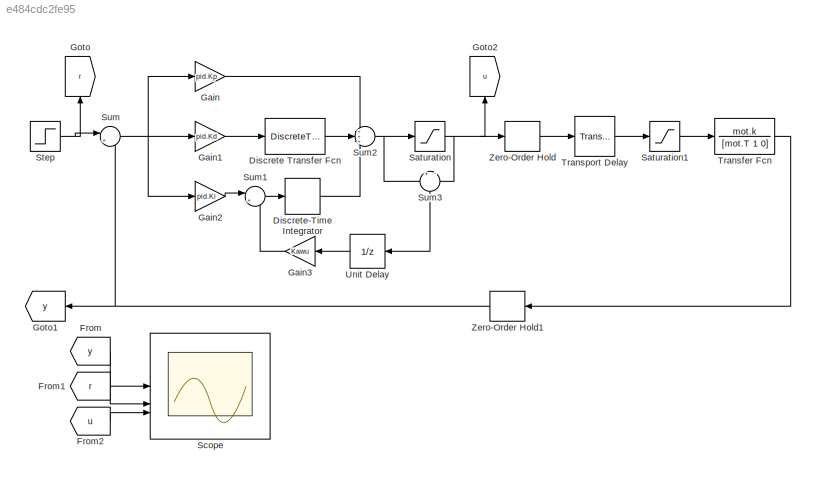
MODEL slx_e484cdc2fe95
KIND model
CONFIG AbsTol = auto
CONFIG EnableMultiTasking = off
CONFIG FixedStep = auto
CONFIG MaxStep = 0.0001
CONFIG MinStep = auto
CONFIG RelTol = 1e-3
CONFIG SampleTimeConstraint = Unconstrained
CONFIG SolverName = ode45
CONFIG StartTime = 0.0
CONFIG StopTime = 1.5
BLOCK [DiscreteTransferFcn] Discrete Transfer Fcn
  Denominator = [Ts 0]
  InputPortMap = u0
  Numerator = [1 -1]
  SampleTime = Ts
BLOCK [DiscreteIntegrator] Discrete-Time Integrator
  ICPrevOutput = DiscIntNeverNeededParam
  ICPrevScaledInput = DiscIntNeverNeededParam
  InitialConditionSetting = Auto
  IntegratorMethod = Integration: Backward Euler
  SampleTime = Ts
BLOCK [From] From
  GotoTag = y
BLOCK [From] From1
  GotoTag = r
BLOCK [From] From2
  GotoTag = u
BLOCK [Gain] Gain
  Gain = pid.Kp
BLOCK [Gain] Gain1
  Gain = pid.Kd
BLOCK [Gain] Gain2
  Gain = pid.Ki
BLOCK [Gain] Gain3
  Gain = Kawu
BLOCK [Goto] Goto
  GotoTag = r
  NameLocation = right
BLOCK [Goto] Goto1
  GotoTag = y
  NameLocation = top
BLOCK [Goto] Goto2
  GotoTag = u
  NameLocation = right
BLOCK [Saturate] Saturation
  LowerLimit = -umax
  UpperLimit = umax
BLOCK [Saturate] Saturation1
  LowerLimit = -umax
  UpperLimit = umax
BLOCK [Scope] Scope
  Floating = off
  NumInputPorts = 3
  ScopeSpecificationString = Simulink.scopes.TimeScopeBlockCfg('CurrentConfiguration', extmgr.ConfigurationSet(extmgr.Configuration('Core','General UI',true),extmgr.Configuration('Core','Source UI',true),extmgr.Configuration('Sources','WiredSimulink',true,'DataLogging',true,'DataLoggingVariableName','sim2_res','DataLoggingSaveFormat','StructureWithTime'),extmgr.Configuration('Visuals','Time Domain',true,'SerializedDisplays',{...<+3382ch>
BLOCK [Step] Step
  After = r.A
  SampleTime = 0
  Time = r.t
BLOCK [Sum] Sum
  Inputs = |+-
BLOCK [Sum] Sum1
  Inputs = |+-
BLOCK [Sum] Sum2
  Inputs = +++
BLOCK [Sum] Sum3
  Inputs = +|-
  NameLocation = left
BLOCK [TransferFcn] Transfer Fcn
  Denominator = [mot.T 1 0]
  Numerator = mot.k
BLOCK [TransportDelay] Transport Delay
  DelayTime = Td
BLOCK [UnitDelay] Unit Delay
  HasFrameUpgradeWarning = on
  SampleTime = -1
BLOCK [ZeroOrderHold] Zero-Order Hold
  SampleTime = Ts
BLOCK [ZeroOrderHold] Zero-Order Hold1
  SampleTime = Ts
LINE Discrete Transfer Fcn:1 -> Sum2:2
LINE Discrete-Time Integrator:1 -> Sum2:3
LINE From1:1 -> Scope:2
LINE From2:1 -> Scope:3
LINE From:1 -> Scope:1
LINE Gain1:1 -> Discrete Transfer Fcn:1
LINE Gain2:1 -> Sum1:1
LINE Gain3:1 -> Sum1:2
LINE Gain:1 -> Sum2:1
LINE Saturation1:1 -> Transfer Fcn:1
NET Saturation:1 -> Goto2:1, Sum3:2, Zero-Order Hold:1
NET Step:1 -> Goto:1, Sum:1
LINE Sum1:1 -> Discrete-Time Integrator:1
NET Sum2:1 -> Saturation:1, Sum3:1
LINE Sum3:1 -> Unit Delay:1
NET Sum:1 -> Gain1:1, Gain2:1, Gain:1
LINE Transfer Fcn:1 -> Zero-Order Hold1:1
LINE Transport Delay:1 -> Saturation1:1
LINE Unit Delay:1 -> Gain3:1
NET Zero-Order Hold1:1 -> Goto1:1, Sum:2
LINE Zero-Order Hold:1 -> Transport Delay:1
note: NET lines group one-source signal fan-out (src -> all destinations, sorted); 1:1 wires keep LINE
